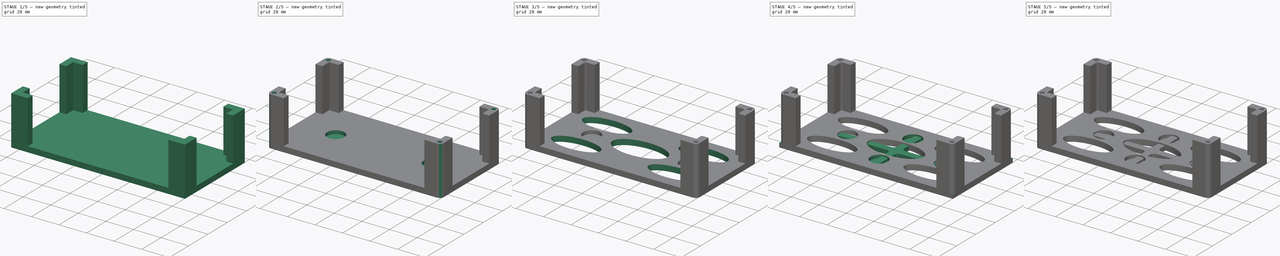
[diagram: build sequence overview — one tinted view per stage of 5, left to right]
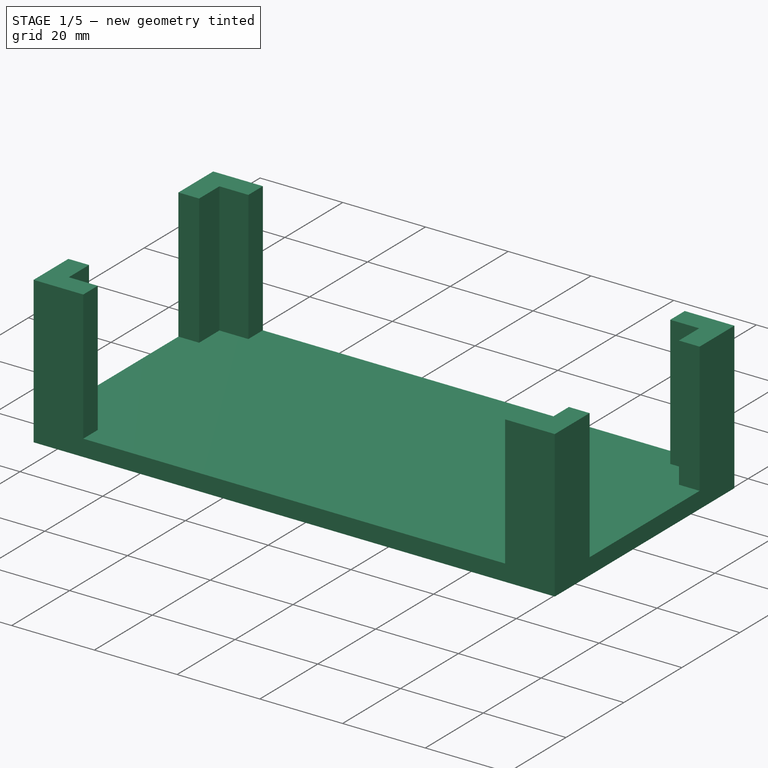
[diagram: stage 1 of 5 — iso view after this stage's code; geometry added in this stage tinted green]
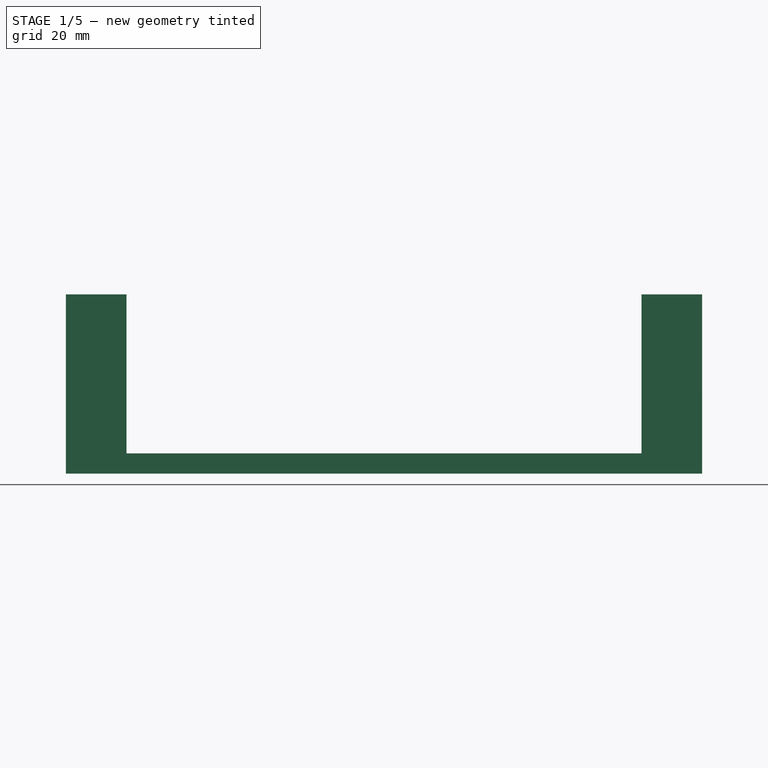
[diagram: stage 1 of 5 — front view after this stage's code; geometry added in this stage tinted green]
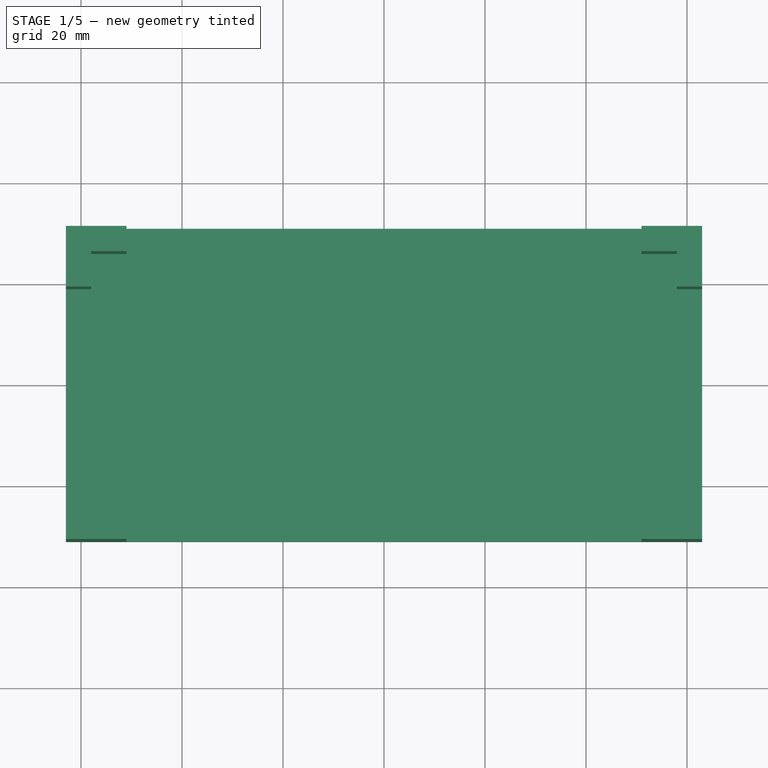
[diagram: stage 1 of 5 — top view after this stage's code; geometry added in this stage tinted green]
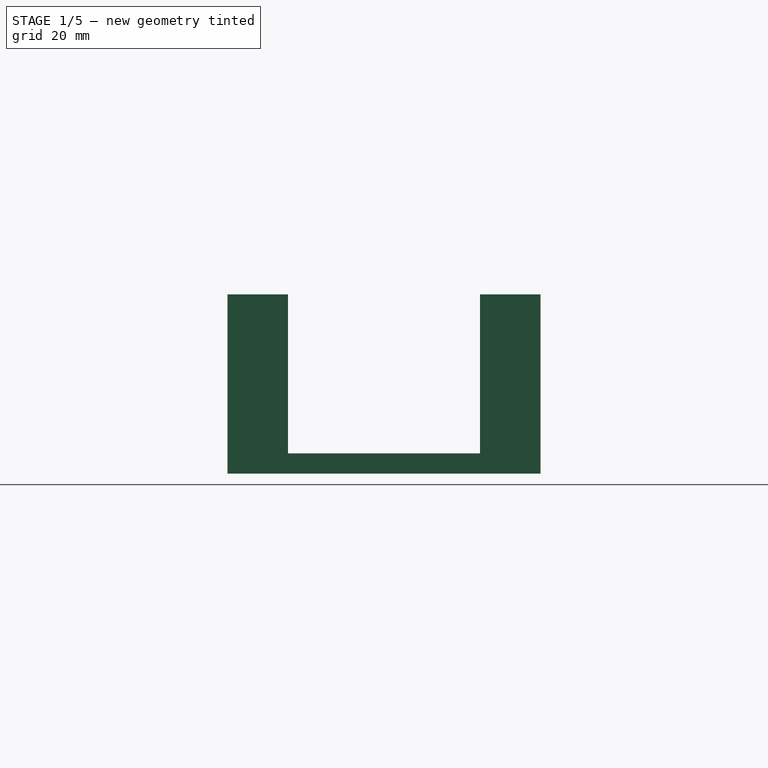
[diagram: stage 1 of 5 — right view after this stage's code; geometry added in this stage tinted green]
FCSTD DOCUMENT  (FreeCAD 0.19R24291 (Git))
Label: 12vAdapterHolderMagnet
License: All rights reserved
LicenseURL: http://en.wikipedia.org/wiki/All_rights_reserved
objects: Sketcher::SketchObject×14, PartDesign::Pocket×9, PartDesign::Mirrored×8, PartDesign::Pad×5, PartDesign::PolarPattern×4, PartDesign::Fillet×4, PartDesign::Body×2
note: 64 computed .brp shape members not serialized (recipe doc carries the construction recipe); baked Part::Feature solids carry a one-line shape summary decoded from their .brp

FEATURE [Sketcher::SketchObject] Sketch
  FullyConstrained = true
  MapMode = 5
  Support = -> [XY_Plane]
  expr: Constraints[11] = Constraints[9] / 2
  expr: Constraints[10] = -Constraints[8] / 2
  sketch-geometry (4):
    g0: LineSegment StartX=-58 StartY=-26 StartZ=0 EndX=58 EndY=-26 EndZ=0
    g1: LineSegment StartX=58 StartY=-26 StartZ=0 EndX=58 EndY=26 EndZ=0
    g2: LineSegment StartX=58 StartY=26 StartZ=0 EndX=-58 EndY=26 EndZ=0
    g3: LineSegment StartX=-58 StartY=26 StartZ=0 EndX=-58 EndY=-26 EndZ=0
  constraints (12):
    c: Coincident(g0,g1)
    c: Coincident(g1,g2)
    c: Coincident(g2,g3)
    c: Coincident(g3,g0)
    c: Horizontal(g0)
    c: Horizontal(g2)
    c: Vertical(g1)
    c: Vertical(g3)
    c: Distance(g2) = 116
    c: Distance(g1) = 52
    c: DistanceX(g-2,g2) = -58
    c: DistanceY(g-1,g1) = 26
FEATURE [PartDesign::Pad] Pad
  Direction = (1,1,1)
  Length = 4
  Length2 = 100
  Profile = -> Sketch
  Type = 0
FEATURE [Sketcher::SketchObject] Sketch001
  ExternalGeometry = -> [Pad]
  FullyConstrained = true
  MapMode = 5
  Placement = pos=(0,0,4) rot=(0,0,1;0rad)
  Support = -> [Pad]
  expr: Constraints[11] = Constraints[8]
  expr: Constraints[10] = Constraints[8]
  expr: Constraints[9] = Constraints[8]
  sketch-geometry (8):
    g0: LineSegment StartX=-63 StartY=-31 StartZ=0 EndX=63 EndY=-31 EndZ=0
    g1: LineSegment StartX=63 StartY=-31 StartZ=0 EndX=63 EndY=31 EndZ=0
    g2: LineSegment StartX=63 StartY=31 StartZ=0 EndX=-63 EndY=31 EndZ=0
    g3: LineSegment StartX=-63 StartY=31 StartZ=0 EndX=-63 EndY=-31 EndZ=0
    g4: LineSegment StartX=-58 StartY=-26 StartZ=0 EndX=58 EndY=-26 EndZ=0
    g5: LineSegment StartX=58 StartY=-26 StartZ=0 EndX=58 EndY=26 EndZ=0
    g6: LineSegment StartX=58 StartY=26 StartZ=0 EndX=-58 EndY=26 EndZ=0
    g7: LineSegment StartX=-58 StartY=26 StartZ=0 EndX=-58 EndY=-26 EndZ=0
  constraints (22):
    c: Coincident(g0,g1)
    c: Coincident(g1,g2)
    c: Coincident(g2,g3)
    c: Coincident(g3,g0)
    c: Horizontal(g0)
    c: Horizontal(g2)
    c: Vertical(g1)
    c: Vertical(g3)
    c: Distance(g-4,g2) = 5
    c: Distance(g-5,g3) = 5
    c: Distance(g-6,g0) = 5
    c: Distance(g-6,g1) = 5
    c: Coincident(g4,g5)
    c: Coincident(g5,g6)
    c: Coincident(g6,g7)
    c: Coincident(g7,g4)
    c: Horizontal(g4)
    c: Horizontal(g6)
    c: Vertical(g5)
    c: Vertical(g7)
    c: Coincident(g4,g-5)
    c: Coincident(g5,g-6)
FEATURE [PartDesign::Pad] Pad001
  BaseFeature = -> Pad
  Direction = (1,1,1)
  Length = 10
  Length2 = 100
  Profile = -> Sketch001
  Reversed = true
  Type = 2
FEATURE [Sketcher::SketchObject] Sketch002
  ExternalGeometry = -> [Pad001]
  FullyConstrained = true
  MapMode = 5
  Placement = pos=(0,0,4) rot=(0,0,1;0rad)
  Support = -> [Pad001]
  sketch-geometry (6):
    g0: LineSegment StartX=-58 StartY=-19 StartZ=0 EndX=-63 EndY=-19 EndZ=0
    g1: LineSegment StartX=-63 StartY=-19 StartZ=0 EndX=-63 EndY=-31 EndZ=0
    g2: LineSegment StartX=-63 StartY=-31 StartZ=0 EndX=-51 EndY=-31 EndZ=0
    g3: LineSegment StartX=-51 StartY=-31 StartZ=0 EndX=-51 EndY=-26 EndZ=0
    g4: LineSegment StartX=-51 StartY=-26 StartZ=0 EndX=-58 EndY=-26 EndZ=0
    g5: LineSegment StartX=-58 StartY=-26 StartZ=0 EndX=-58 EndY=-19 EndZ=0
  constraints (16):
    c: PointOnObject(g0,g-4)
    c: PointOnObject(g0,g-3)
    c: Horizontal(g0)
    c: Coincident(g1,g0)
    c: Coincident(g1,g-6)
    c: Coincident(g2,g1)
    c: PointOnObject(g2,g-6)
    c: Coincident(g3,g2)
    c: PointOnObject(g3,g-5)
    c: Vertical(g3)
    c: Coincident(g4,g3)
    c: Coincident(g4,g-5)
    c: Coincident(g5,g4)
    c: Coincident(g5,g0)
    c: Equal(g5,g4)
    c: Distance(g1) = 12
FEATURE [PartDesign::Pad] Pad002
  BaseFeature = -> Pad001
  Direction = (1,1,1)
  Length = 31.5
  Length2 = 100
  Profile = -> Sketch002
  Type = 0
FEATURE [PartDesign::Mirrored] Mirrored
  BaseFeature = -> Pad002
  MirrorPlane = -> Sketch002 [V_Axis]
  Originals = -> [Pad002]
FEATURE [PartDesign::Mirrored] Mirrored001
  BaseFeature = -> Mirrored
  MirrorPlane = -> XZ_Plane
  Originals = -> [Pad002]
FEATURE [PartDesign::PolarPattern] PolarPattern
  Angle = 360
  Axis = -> Sketch002 [N_Axis]
  BaseFeature = -> Mirrored001
  Occurrences = 2
  Originals = -> [Pad002]
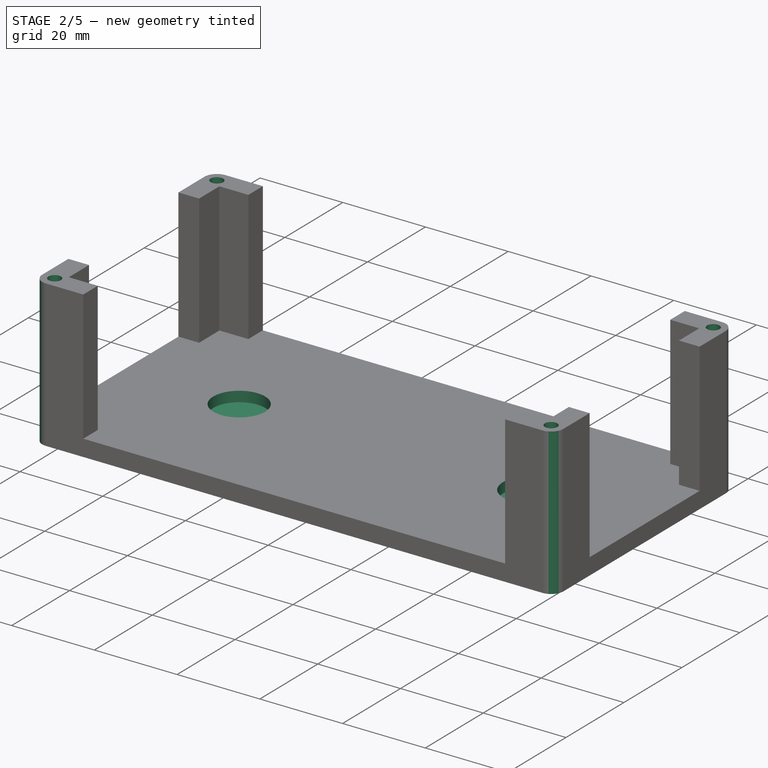
[diagram: stage 2 of 5 — iso view after this stage's code; geometry added in this stage tinted green]
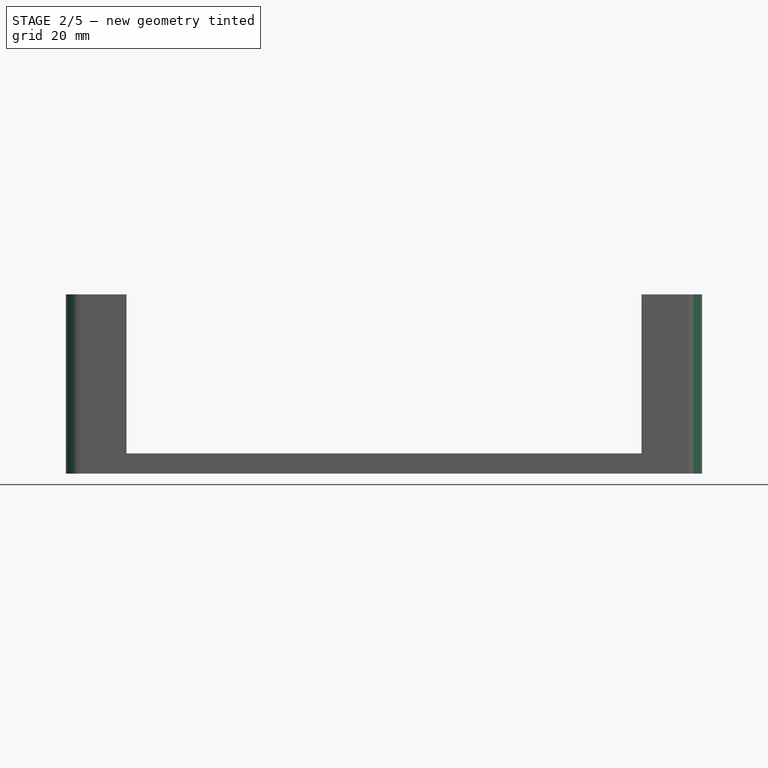
[diagram: stage 2 of 5 — front view after this stage's code; geometry added in this stage tinted green]
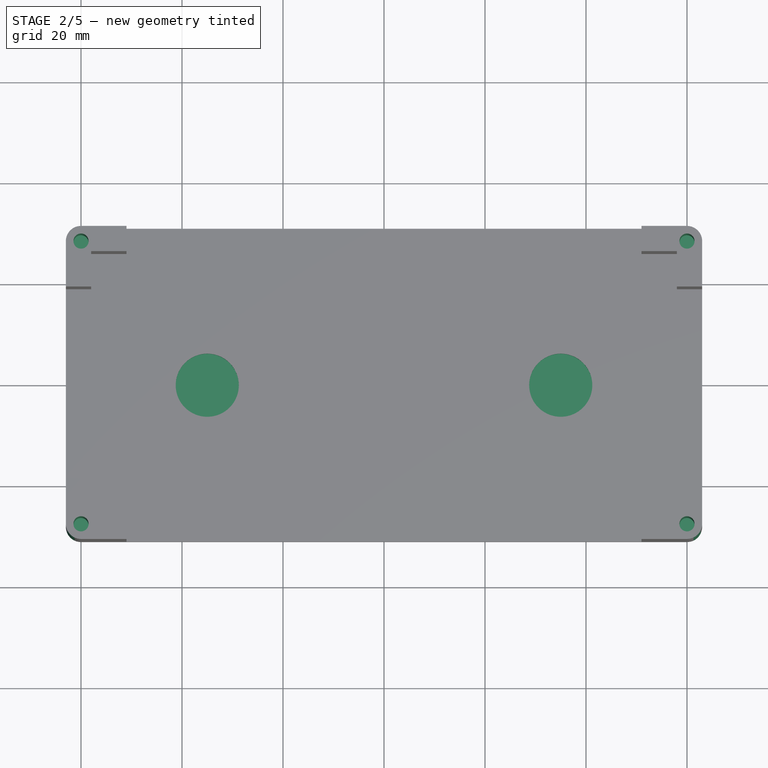
[diagram: stage 2 of 5 — top view after this stage's code; geometry added in this stage tinted green]
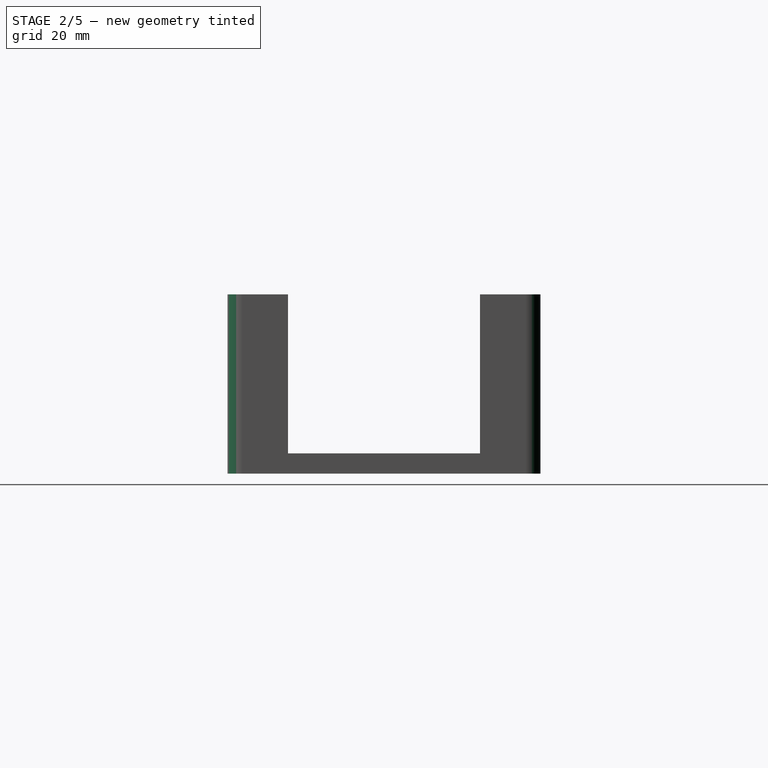
[diagram: stage 2 of 5 — right view after this stage's code; geometry added in this stage tinted green]
FEATURE [Sketcher::SketchObject] Sketch003
  FullyConstrained = true
  MapMode = 5
  Placement = pos=(0,0,4) rot=(0,0,1;0rad)
  Support = -> [PolarPattern]
  expr: Constraints[5] = -Constraints[4]
  expr: Constraints[3] = Constraints[2]
  sketch-geometry (2):
    g0: Circle CenterX=-35 CenterY=0 CenterZ=0 NormalX=0 NormalY=0 NormalZ=1 AngleXU=0 Radius=6.25
    g1: Circle CenterX=35 CenterY=0 CenterZ=0 NormalX=0 NormalY=0 NormalZ=1 AngleXU=0 Radius=6.25
  constraints (6):
    c: PointOnObject(g0,g-1)
    c: PointOnObject(g1,g-1)
    c: Diameter(g0) = 12.5
    c: Diameter(g1) = 12.5
    c: DistanceX(g-2,g0) = -35
    c: DistanceX(g-2,g1) = 35
FEATURE [PartDesign::Pocket] Pocket
  BaseFeature = -> PolarPattern
  Length = 2.5
  Length2 = 100
  Profile = -> Sketch003
  Type = 0
FEATURE [PartDesign::Fillet] Fillet
  Base = -> Pocket [Edge25,Edge13,Edge35,Edge17,Edge31,Edge12,Edge42,Edge21]
  BaseFeature = -> Pocket
  Radius = 3
  SupportTransform = false
FEATURE [Sketcher::SketchObject] Sketch004
  ExternalGeometry = -> [Fillet]
  FullyConstrained = true
  MapMode = 5
  Placement = pos=(0,-1.58e-14,35.5) rot=(0,0,1;0rad)
  Support = -> [Fillet]
  sketch-geometry (3):
    g0: Circle CenterX=-60 CenterY=28 CenterZ=0 NormalX=0 NormalY=0 NormalZ=1 AngleXU=0 Radius=1.5
    g1: LineSegment StartX=-58 StartY=26 StartZ=0 EndX=-60 EndY=28 EndZ=0
    g2: LineSegment StartX=-60 StartY=28 StartZ=0 EndX=-62.1213 EndY=30.1213 EndZ=0
  constraints (7):
    c: Coincident(g1,g-5)
    c: Coincident(g1,g-3)
    c: Coincident(g2,g1)
    c: Parallel(g2,g1)
    c: PointOnObject(g2,g-3)
    c: Coincident(g0,g1)
    c: Diameter(g0) = 3
FEATURE [PartDesign::Pocket] Pocket001
  BaseFeature = -> Fillet
  Length = 20
  Length2 = 100
  Offset = 20
  Profile = -> Sketch004
  Type = 0
FEATURE [PartDesign::PolarPattern] PolarPattern001
  Angle = 360
  Axis = -> Sketch004 [N_Axis]
  BaseFeature = -> Pocket001
  Occurrences = 2
  Originals = -> [Pocket001]
FEATURE [PartDesign::Mirrored] Mirrored002
  BaseFeature = -> PolarPattern001
  MirrorPlane = -> XZ_Plane
  Originals = -> [Pocket001]
FEATURE [PartDesign::Mirrored] Mirrored003
  BaseFeature = -> Mirrored002
  MirrorPlane = -> Sketch004 [V_Axis]
  Originals = -> [Pocket001]
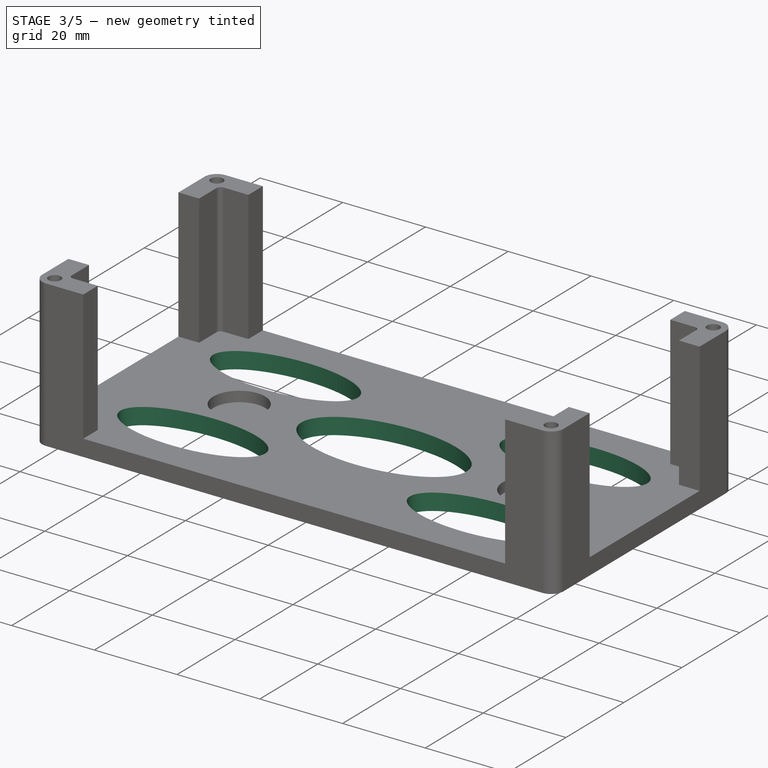
[diagram: stage 3 of 5 — iso view after this stage's code; geometry added in this stage tinted green]
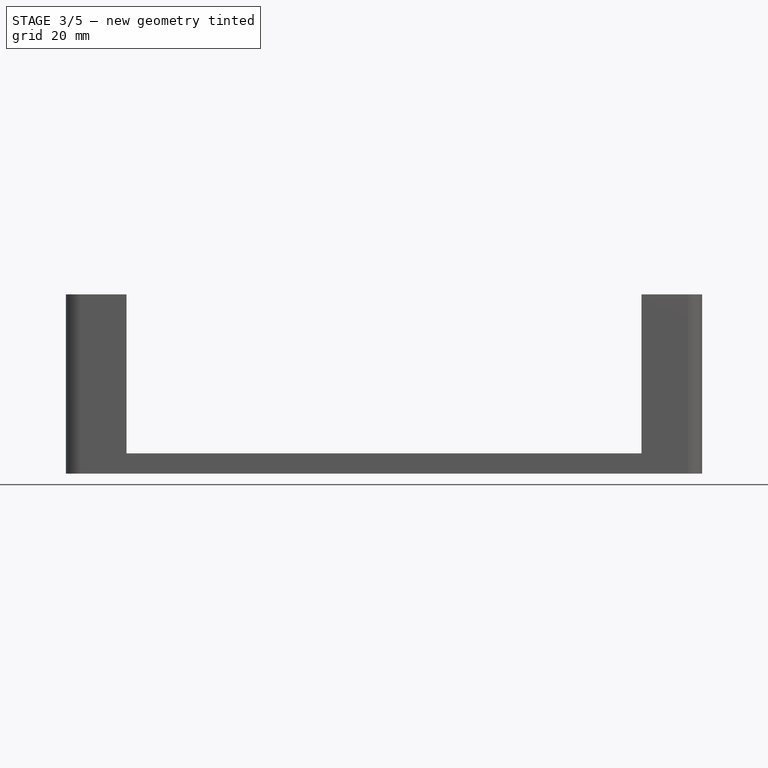
[diagram: stage 3 of 5 — front view after this stage's code; geometry added in this stage tinted green]
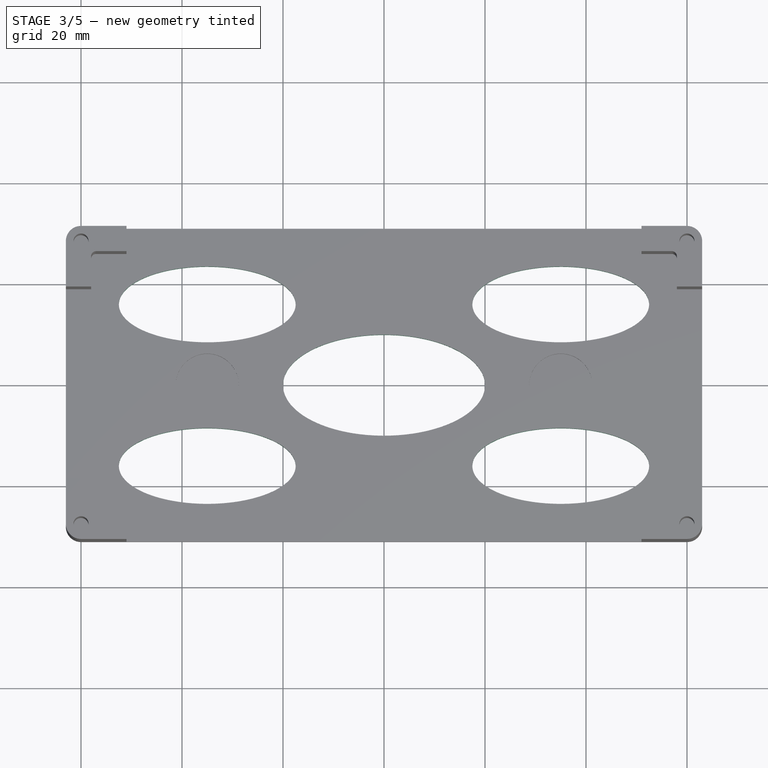
[diagram: stage 3 of 5 — top view after this stage's code; geometry added in this stage tinted green]
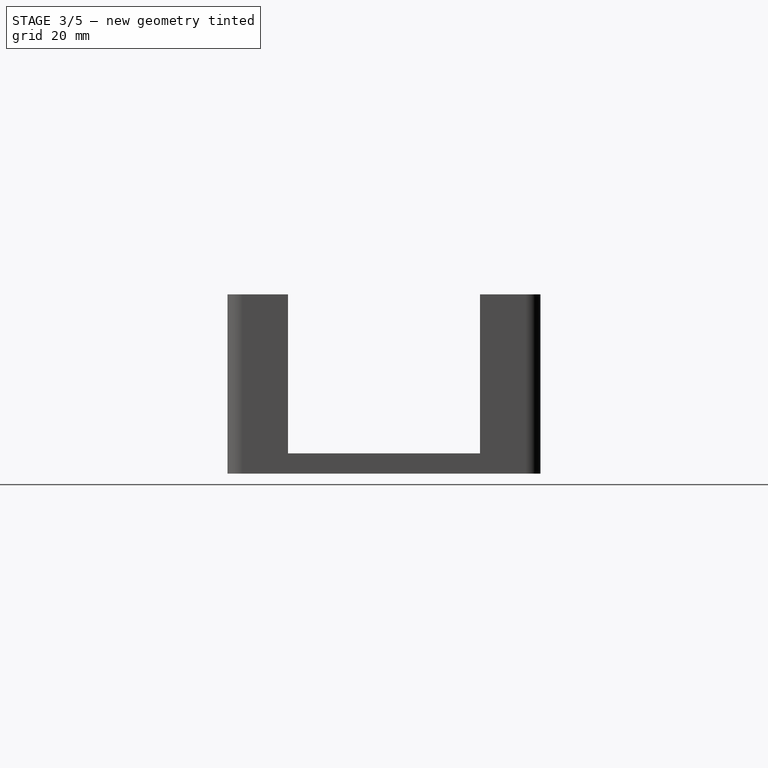
[diagram: stage 3 of 5 — right view after this stage's code; geometry added in this stage tinted green]
FEATURE [Sketcher::SketchObject] Sketch005
  FullyConstrained = true
  MapMode = 5
  Placement = pos=(0,0,4) rot=(0,0,1;0rad)
  Support = -> [Mirrored003]
  sketch-geometry (5):
    g0: Ellipse CenterX=0 CenterY=0 CenterZ=0 NormalX=0 NormalY=0 NormalZ=1 MajorRadius=20 MinorRadius=10 AngleXU=0
    g1: LineSegment StartX=20 StartY=0 StartZ=0 EndX=-20 EndY=0 EndZ=0
    g2: LineSegment StartX=0 StartY=10 StartZ=0 EndX=0 EndY=-10 EndZ=0
    g3: GeomPoint X=17.3205 Y=0 Z=0
    g4: GeomPoint X=-17.3205 Y=0 Z=0
  constraints (5):
    c: InternalAlignment(g1-g4 -> g0) x4
    c: Coincident(g0,g-1)
    c: Distance(g2) = 20
    c: Distance(g1) = 40
    c: Horizontal(g1)
FEATURE [PartDesign::Pocket] Pocket002
  BaseFeature = -> Mirrored003
  Length = 5
  Length2 = 100
  Profile = -> Sketch005
  Type = 1
FEATURE [Sketcher::SketchObject] Sketch006
  ExternalGeometry = -> [Pocket002]
  FullyConstrained = true
  MapMode = 5
  Support = -> [XY_Plane]
  sketch-geometry (5):
    g0: Ellipse CenterX=-35 CenterY=16 CenterZ=0 NormalX=0 NormalY=0 NormalZ=1 MajorRadius=17.5 MinorRadius=7.5 AngleXU=-3.14159
    g1: LineSegment StartX=-52.5 StartY=16 StartZ=0 EndX=-17.5 EndY=16 EndZ=0
    g2: LineSegment StartX=-35 StartY=8.5 StartZ=0 EndX=-35 EndY=23.5 EndZ=0
    g3: GeomPoint X=-50.8114 Y=16 Z=0
    g4: GeomPoint X=-19.1886 Y=16 Z=0
  constraints (6):
    c: InternalAlignment(g1-g4 -> g0) x4
    c: Horizontal(g1)
    c: Vertical(g0,g-7)
    c: Distance(g0,g-3) = 10
    c: Distance(g2) = 15
    c: Distance(g1) = 35
FEATURE [PartDesign::Pocket] Pocket003
  BaseFeature = -> Pocket002
  Length = 5
  Length2 = 100
  Profile = -> Sketch006
  Reversed = true
  Type = 1
FEATURE [PartDesign::Mirrored] Mirrored004
  BaseFeature = -> Pocket003
  MirrorPlane = -> Sketch006 [V_Axis]
  Originals = -> [Pocket003]
FEATURE [PartDesign::Mirrored] Mirrored005
  BaseFeature = -> Mirrored004
  MirrorPlane = -> XZ_Plane
  Originals = -> [Pocket003]
FEATURE [PartDesign::PolarPattern] PolarPattern002
  Angle = 360
  Axis = -> Sketch006 [N_Axis]
  BaseFeature = -> Mirrored005
  Occurrences = 2
  Originals = -> [Pocket003]
FEATURE [PartDesign::Fillet] Fillet001
  Base = -> PolarPattern002 [Edge134,Edge130,Edge135,Edge133]
  BaseFeature = -> PolarPattern002
  Radius = 1
  SupportTransform = false
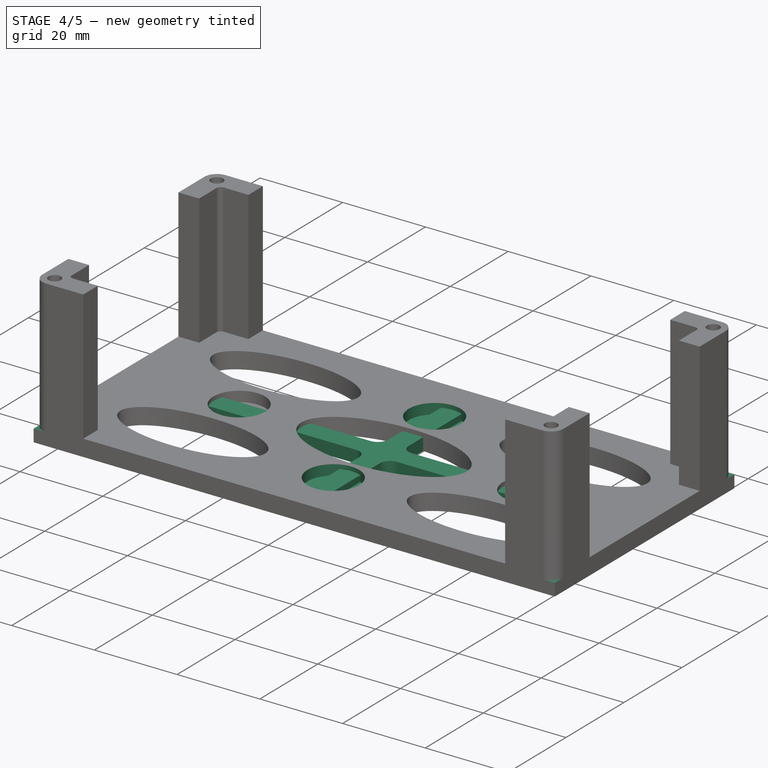
[diagram: stage 4 of 5 — iso view after this stage's code; geometry added in this stage tinted green]
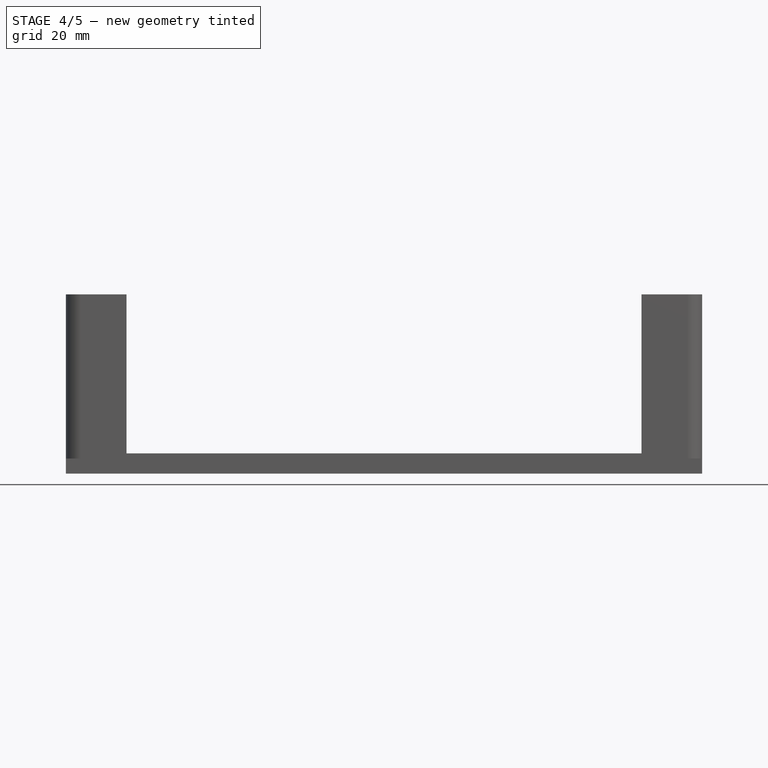
[diagram: stage 4 of 5 — front view after this stage's code; geometry added in this stage tinted green]
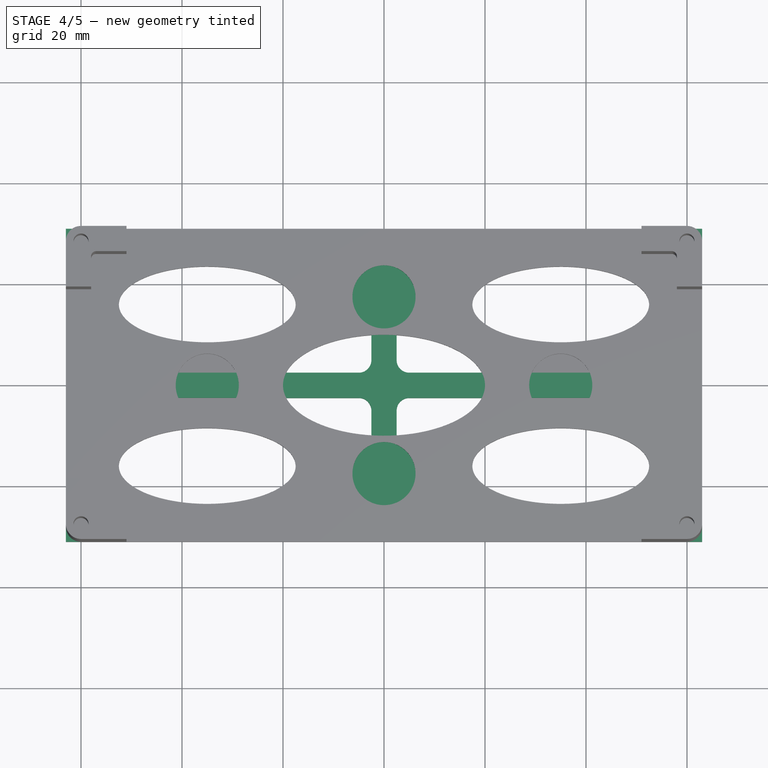
[diagram: stage 4 of 5 — top view after this stage's code; geometry added in this stage tinted green]
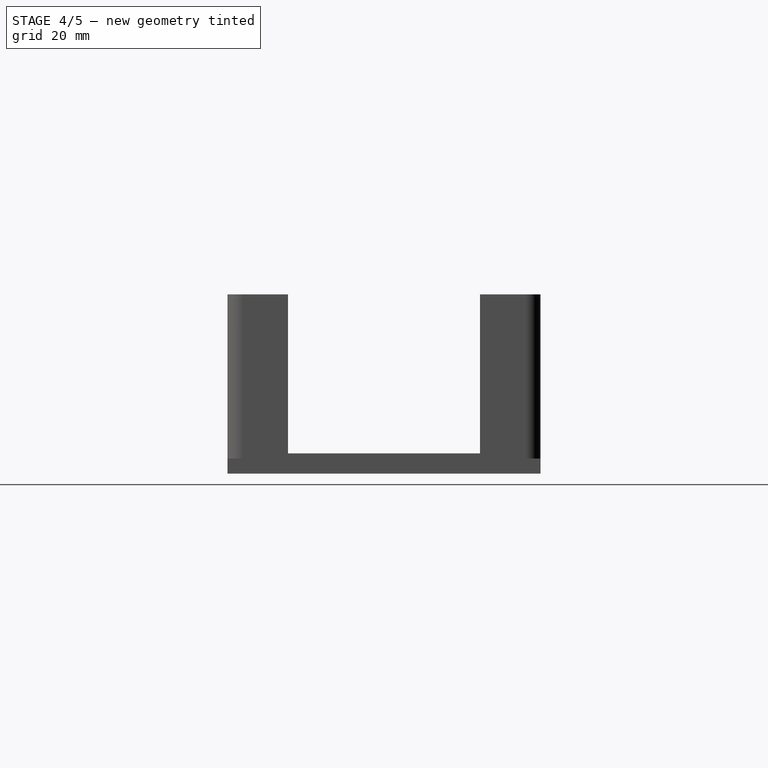
[diagram: stage 4 of 5 — right view after this stage's code; geometry added in this stage tinted green]
FEATURE [Sketcher::SketchObject] Sketch007
  FullyConstrained = true
  MapMode = 5
  Support = -> [XY_Plane001]
  expr: Constraints[11] = Constraints[9] / 2
  expr: Constraints[10] = Constraints[8] / 2
  sketch-geometry (4):
    g0: LineSegment StartX=-63 StartY=-31 StartZ=0 EndX=63 EndY=-31 EndZ=0
    g1: LineSegment StartX=63 StartY=-31 StartZ=0 EndX=63 EndY=31 EndZ=0
    g2: LineSegment StartX=63 StartY=31 StartZ=0 EndX=-63 EndY=31 EndZ=0
    g3: LineSegment StartX=-63 StartY=31 StartZ=0 EndX=-63 EndY=-31 EndZ=0
  constraints (12):
    c: Coincident(g0,g1)
    c: Coincident(g1,g2)
    c: Coincident(g2,g3)
    c: Coincident(g3,g0)
    c: Horizontal(g0)
    c: Horizontal(g2)
    c: Vertical(g1)
    c: Vertical(g3)
    c: Distance(g2) = 126
    c: Distance(g1) = 62
    c: Distance(g2,g-2) = 63
    c: Distance(g1,g-1) = 31
FEATURE [PartDesign::Pad] Pad003
  Direction = (1,1,1)
  Length = 3
  Length2 = 100
  Profile = -> Sketch007
  Type = 0
FEATURE [Sketcher::SketchObject] Sketch008
  ExternalGeometry = -> [Pad003]
  FullyConstrained = true
  MapMode = 5
  Placement = pos=(0,0,3) rot=(0,0,1;0rad)
  Support = -> [Pad003]
  expr: Constraints[11] = Constraints[8]
  expr: Constraints[10] = Constraints[8]
  expr: Constraints[9] = Constraints[8]
  sketch-geometry (4):
    g0: LineSegment StartX=-58 StartY=-26 StartZ=0 EndX=58 EndY=-26 EndZ=0
    g1: LineSegment StartX=58 StartY=-26 StartZ=0 EndX=58 EndY=26 EndZ=0
    g2: LineSegment StartX=58 StartY=26 StartZ=0 EndX=-58 EndY=26 EndZ=0
    g3: LineSegment StartX=-58 StartY=26 StartZ=0 EndX=-58 EndY=-26 EndZ=0
  constraints (12):
    c: Coincident(g0,g1)
    c: Coincident(g1,g2)
    c: Coincident(g2,g3)
    c: Coincident(g3,g0)
    c: Horizontal(g0)
    c: Horizontal(g2)
    c: Vertical(g1)
    c: Vertical(g3)
    c: Distance(g2,g-4) = 5
    c: Distance(g2,g-3) = 5
    c: Distance(g0,g-5) = 5
    c: Distance(g1,g-6) = 5
FEATURE [PartDesign::Pocket] Pocket004
  BaseFeature = -> Pad003
  Length = 5
  Length2 = 100
  Profile = -> Sketch008
  Type = 1
FEATURE [Sketcher::SketchObject] Sketch009
  ExternalGeometry = -> [Pocket004]
  FullyConstrained = true
  MapMode = 5
  Placement = pos=(0,0,3) rot=(0,0,1;0rad)
  Support = -> [Pocket004]
  expr: Constraints[59] = Constraints[5]
  expr: Constraints[57] = -Constraints[11]
  expr: Constraints[56] = Constraints[5]
  expr: Constraints[44] = Constraints[5]
  expr: Constraints[42] = -Constraints[11]
  expr: Constraints[27] = Constraints[11]
  expr: Constraints[32] = Constraints[11]
  expr: Constraints[26] = Constraints[5]
  expr: Constraints[31] = Constraints[5]
  expr: Constraints[21] = Constraints[5]
  expr: Constraints[37] = Constraints[5]
  expr: Constraints[35] = Constraints[5]
  expr: Constraints[18] = -Constraints[11]
  expr: Constraints[49] = Constraints[11]
  expr: Constraints[45] = Constraints[11]
  expr: Constraints[15] = Constraints[5]
  expr: Constraints[11] = Constraints[10] / 2
  expr: Constraints[6] = Constraints[5]
  sketch-geometry (24):
    g0: ArcOfCircle CenterX=-5 CenterY=-5 CenterZ=0 NormalX=0 NormalY=0 NormalZ=1 AngleXU=0 Radius=2.5 StartAngle=2e-16 EndAngle=1.5708
    g1: ArcOfCircle CenterX=-5 CenterY=5 CenterZ=0 NormalX=0 NormalY=0 NormalZ=1 AngleXU=0 Radius=2.5 StartAngle=4.71239 EndAngle=6.28319
    g2: ArcOfCircle CenterX=5 CenterY=5 CenterZ=0 NormalX=0 NormalY=0 NormalZ=1 AngleXU=0 Radius=2.5 StartAngle=3.14159 EndAngle=4.71239
    g3: ArcOfCircle CenterX=-55.5 CenterY=5 CenterZ=0 NormalX=0 NormalY=0 NormalZ=1 AngleXU=0 Radius=2.5 StartAngle=3.14159 EndAngle=4.71239
    g4: ArcOfCircle CenterX=-55.5 CenterY=-5 CenterZ=0 NormalX=0 NormalY=0 NormalZ=1 AngleXU=0 Radius=2.5 StartAngle=1.5708 EndAngle=3.14159
    g5: ArcOfCircle CenterX=-5 CenterY=-23.5 CenterZ=0 NormalX=0 NormalY=0 NormalZ=1 AngleXU=0 Radius=2.5 StartAngle=4.71239 EndAngle=6.28319
    g6: ArcOfCircle CenterX=5 CenterY=-23.5 CenterZ=0 NormalX=0 NormalY=0 NormalZ=1 AngleXU=0 Radius=2.5 StartAngle=3.14159 EndAngle=4.71239
    g7: ArcOfCircle CenterX=55.5 CenterY=-5 CenterZ=0 NormalX=0 NormalY=0 NormalZ=1 AngleXU=0 Radius=2.5 StartAngle=4.59344e-08 EndAngle=1.5708
    g8: ArcOfCircle CenterX=55.5 CenterY=5 CenterZ=0 NormalX=0 NormalY=0 NormalZ=1 AngleXU=0 Radius=2.5 StartAngle=4.71239 EndAngle=6.28319
    g9: ArcOfCircle CenterX=5 CenterY=23.5 CenterZ=0 NormalX=0 NormalY=0 NormalZ=1 AngleXU=0 Radius=2.5 StartAngle=1.5708 EndAngle=3.14159
    g10: ArcOfCircle CenterX=-5 CenterY=23.5 CenterZ=0 NormalX=0 NormalY=0 NormalZ=1 AngleXU=0 Radius=2.5 StartAngle=8e-16 EndAngle=1.5708
    g11: LineSegment StartX=-55.5 StartY=2.5 StartZ=0 EndX=-5 EndY=2.5 EndZ=0
    g12: LineSegment StartX=-55.5 StartY=-2.5 StartZ=0 EndX=-5 EndY=-2.5 EndZ=0
    g13: LineSegment StartX=-2.5 StartY=-5 StartZ=0 EndX=-2.5 EndY=-23.5 EndZ=0
    g14: LineSegment StartX=5 StartY=2.5 StartZ=0 EndX=55.5 EndY=2.5 EndZ=0
    g15: LineSegment StartX=2.5 StartY=23.5 StartZ=0 EndX=2.5 EndY=5 EndZ=0
    g16: LineSegment StartX=-2.5 StartY=23.5 StartZ=0 EndX=-2.5 EndY=5 EndZ=0
    g17: LineSegment StartX=2.5 StartY=-23.5 StartZ=0 EndX=2.5 EndY=-5 EndZ=0
    g18: ArcOfCircle CenterX=5 CenterY=-5 CenterZ=0 NormalX=0 NormalY=0 NormalZ=1 AngleXU=0 Radius=2.5 StartAngle=1.5708 EndAngle=3.14159
    g19: LineSegment StartX=5 StartY=-2.5 StartZ=0 EndX=55.5 EndY=-2.5 EndZ=0
    g20: LineSegment StartX=-58 StartY=5 StartZ=0 EndX=-58 EndY=-5 EndZ=0
    g21: LineSegment StartX=-5 StartY=26 StartZ=0 EndX=5 EndY=26 EndZ=0
    g22: LineSegment StartX=58 StartY=5 StartZ=0 EndX=58 EndY=-5 EndZ=0
    g23: LineSegment StartX=-5 StartY=-26 StartZ=0 EndX=5.00001 EndY=-26 EndZ=0
  constraints (68):
    c: Tangent(g3,g-4)
    c: Tangent(g4,g-4)
    c: PointOnObject(g3,g-4)
    c: Coincident(g4,g12)
    c: PointOnObject(g4,g-4)
    c: Radius(g3) = 2.5
    c: Radius(g4) = 2.5
    c: Vertical(g4,g3)
    c: Horizontal(g11)
    c: Horizontal(g12)
    c: Distance(g3,g12) = 5
    c: DistanceY(g-1,g3) = 2.5
    c: Tangent(g3,g11) = -1.5708
    c: Tangent(g1,g11) = -1.5708
    c: Tangent(g12,g0) = 1.5708
    c: Radius(g1) = 2.5
    c: Tangent(g1,g16) = 1.5708
    c: Vertical(g16)
    c: DistanceX(g-2,g1) = -2.5
    c: Tangent(g10,g16) = 1.5708
    c: Tangent(g10,g-3) = -1.5708
    c: Radius(g10) = 2.5
    c: Vertical(g15)
    c: Tangent(g15,g9) = -1.5708
    c: PointOnObject(g9,g-3)
    c: Tangent(g9,g-3)
    c: Radius(g9) = 2.5
    c: Distance(g9,g-2) = 2.5
    c: Tangent(g15,g2) = -1.5708
    c: Horizontal(g14)
    c: Tangent(g2,g14) = -1.5708
    c: Radius(g2) = 2.5
    c: DistanceY(g-1,g2) = 2.5
    c: PointOnObject(g8,g-6)
    c: Tangent(g8,g-6)
    c: Radius(g8) = 2.5
    c: Tangent(g14,g8) = -1.5708
    c: Radius(g7) = 2.5
    c: Horizontal(g19)
    c: Tangent(g7,g19) = 1.5708
    c: Tangent(g7,g-6)
    c: PointOnObject(g7,g-6)
    c: DistanceY(g-1,g7) = -2.5
    c: Tangent(g19,g18) = 1.5708
    c: Radius(g18) = 2.5
    c: DistanceX(g-2,g18) = 2.5
    c: Vertical(g17)
    c: Tangent(g18,g17) = 1.5708
    c: Tangent(g17,g6) = 1.5708
    c: Distance(g6,g-5) = 2.5
    c: Tangent(g6,g-5)
    c: PointOnObject(g6,g-5)
    c: Vertical(g13)
    c: Tangent(g13,g5) = 1.5708
    c: Tangent(g5,g-5)
    c: PointOnObject(g5,g-5)
    c: Radius(g5) = 2.5
    c: DistanceX(g-2,g5) = -2.5
    c: Tangent(g0,g13) = 1.5708
    c: Radius(g0) = 2.5
    c: Coincident(g20,g3)
    c: Coincident(g20,g4)
    c: Coincident(g21,g10)
    c: Coincident(g21,g9)
    c: Coincident(g22,g8)
    c: Coincident(g22,g7)
    c: Coincident(g23,g5)
    c: Coincident(g23,g6)
FEATURE [PartDesign::Pad] Pad004
  BaseFeature = -> Pocket004
  Direction = (1,1,1)
  Length = 10
  Length2 = 100
  Profile = -> Sketch009
  Reversed = true
  Type = 3
  UpToFace = -> Pocket004 [Face4]
FEATURE [PartDesign::Body] Body001  label="Lid"
  Group = -> [Sketch007,Pad003,Sketch008,Pocket004,Sketch009,Pad004,Fillet002,Fillet003,Sketch010,Pocket005,Mirrored006,Mirrored007,PolarPattern003]
  Origin = -> Origin001
  Tip = -> PolarPattern003
FEATURE [Sketcher::SketchObject] Sketch011
  ExternalGeometry = -> [Pocket]
  FullyConstrained = true
  MapMode = 5
  Placement = pos=(0,0,1.5) rot=(0,0,1;0rad)
  Support = -> [Pocket]
  expr: Constraints[3] = Constraints[2]
  sketch-geometry (2):
    g0: Circle CenterX=-35 CenterY=0 CenterZ=0 NormalX=0 NormalY=0 NormalZ=1 AngleXU=0 Radius=1
    g1: Circle CenterX=35 CenterY=0 CenterZ=0 NormalX=0 NormalY=0 NormalZ=1 AngleXU=0 Radius=1
  constraints (4):
    c: Coincident(g0,g-3)
    c: Coincident(g1,g-4)
    c: Diameter(g0) = 2
    c: Diameter(g1) = 2
FEATURE [PartDesign::Pocket] Pocket006
  BaseFeature = -> Fillet001
  Length = 5
  Length2 = 100
  Profile = -> Sketch011
  Type = 1
FEATURE [Sketcher::SketchObject] Sketch012
  FullyConstrained = true
  MapMode = 5
  Placement = pos=(0,0,4) rot=(0,0,1;0rad)
  Support = -> [Pocket006]
  expr: Constraints[3] = Constraints[2]
  sketch-geometry (4):
    g0: Circle CenterX=0 CenterY=17.5 CenterZ=0 NormalX=0 NormalY=0 NormalZ=1 AngleXU=0 Radius=6.25
    g1: Circle CenterX=0 CenterY=-17.5 CenterZ=0 NormalX=0 NormalY=0 NormalZ=1 AngleXU=0 Radius=6.25
    g2: LineSegment StartX=0 StartY=17.5 StartZ=0 EndX=0 EndY=0 EndZ=0
    g3: LineSegment StartX=0 StartY=0 StartZ=0 EndX=0 EndY=-17.5 EndZ=0
  constraints (10):
    c: PointOnObject(g0,g-2)
    c: PointOnObject(g1,g-2)
    c: Diameter(g0) = 12.5
    c: Diameter(g1) = 12.5
    c: Coincident(g2,g0)
    c: Coincident(g2,g-1)
    c: Coincident(g3,g-1)
    c: Coincident(g3,g1)
    c: Equal(g2,g3)
    c: DistanceY(g1,g0) = 35
FEATURE [PartDesign::Pocket] Pocket007
  BaseFeature = -> Pocket006
  Length = 2.5
  Length2 = 100
  Profile = -> Sketch012
  Type = 0
FEATURE [Sketcher::SketchObject] Sketch013
  ExternalGeometry = -> [Pocket007]
  FullyConstrained = true
  MapMode = 5
  Placement = pos=(0,0,1.5) rot=(0,0,1;0rad)
  Support = -> [Pocket007]
  expr: Constraints[3] = Constraints[2]
  sketch-geometry (2):
    g0: Circle CenterX=0 CenterY=17.5 CenterZ=0 NormalX=0 NormalY=0 NormalZ=1 AngleXU=0 Radius=1
    g1: Circle CenterX=0 CenterY=-17.5 CenterZ=0 NormalX=0 NormalY=0 NormalZ=1 AngleXU=0 Radius=1
  constraints (4):
    c: Coincident(g0,g-3)
    c: Coincident(g1,g-4)
    c: Diameter(g0) = 2
    c: Diameter(g1) = 2
FEATURE [PartDesign::Pocket] Pocket008
  BaseFeature = -> Pocket007
  Length = 5
  Length2 = 100
  Profile = -> Sketch013
  Type = 1
FEATURE [PartDesign::Body] Body
  Group = -> [Sketch,Pad,Sketch001,Pad001,Sketch002,Pad002,Mirrored,Mirrored001,PolarPattern,Sketch003,Pocket,Fillet,Sketch004,Pocket001,PolarPattern001,Mirrored002,Mirrored003,Sketch005,Pocket002,Sketch006,Pocket003,Mirrored004,Mirrored005,PolarPattern002,Fillet001,Sketch011,Pocket006,Sketch012,Pocket007,Sketch013,Pocket008]
  Origin = -> Origin
  Tip = -> Pocket008
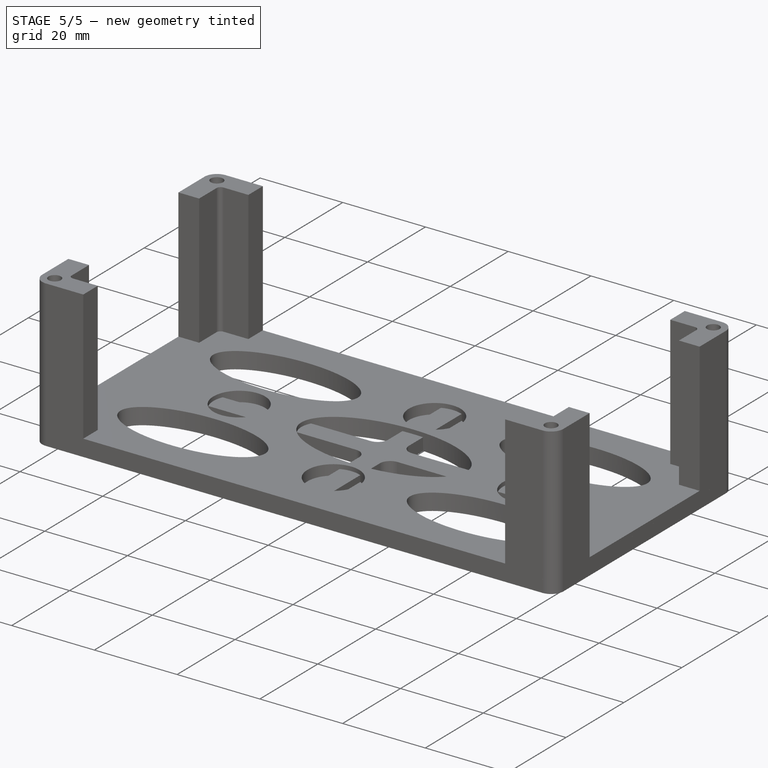
[diagram: stage 5 of 5 — iso view after this stage's code; geometry added in this stage tinted green]
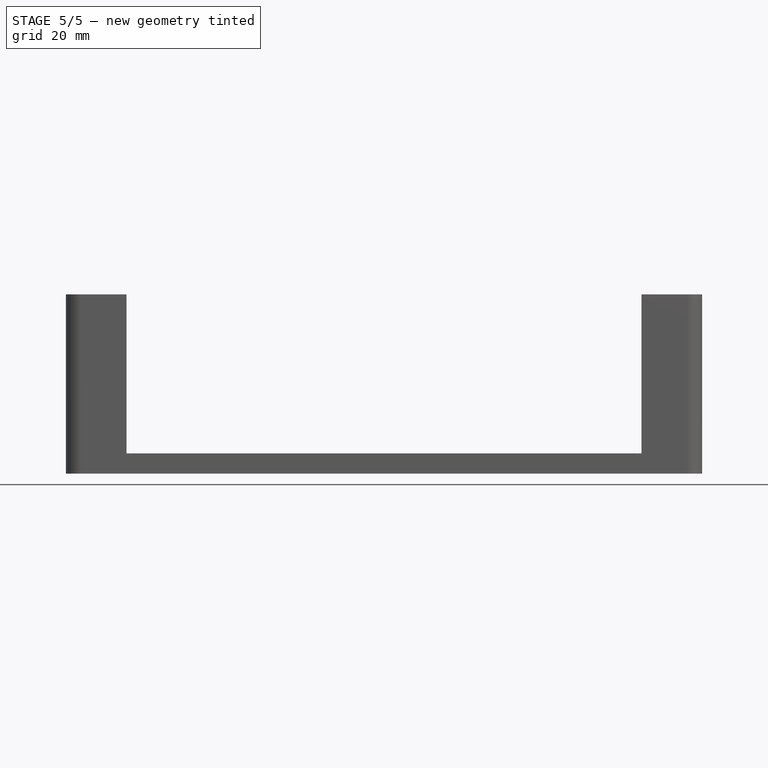
[diagram: stage 5 of 5 — front view after this stage's code; geometry added in this stage tinted green]
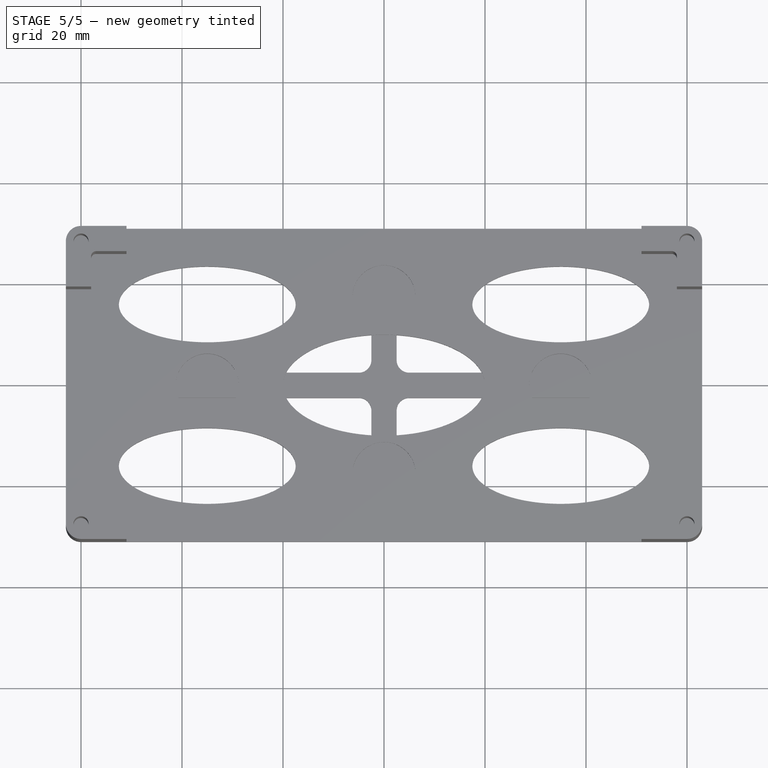
[diagram: stage 5 of 5 — top view after this stage's code; geometry added in this stage tinted green]
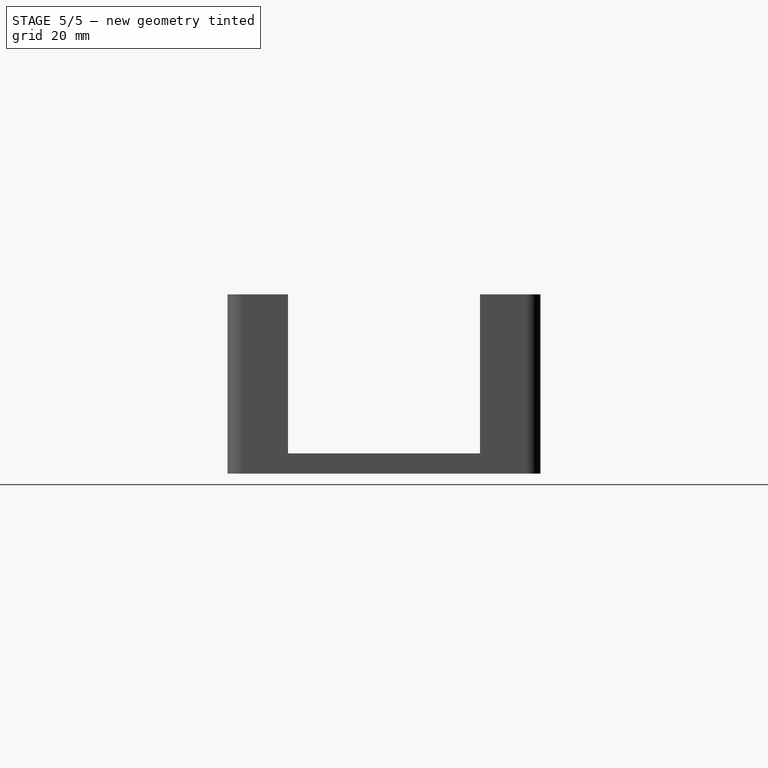
[diagram: stage 5 of 5 — right view after this stage's code; geometry added in this stage tinted green]
FEATURE [PartDesign::Fillet] Fillet002
  Base = -> Pad004 [Edge5,Edge1,Edge2,Edge8]
  BaseFeature = -> Pad004
  Radius = 3
  SupportTransform = false
FEATURE [PartDesign::Fillet] Fillet003
  Base = -> Fillet002 [Edge50,Edge77,Edge74,Edge71]
  BaseFeature = -> Fillet002
  Radius = 2.5
  SupportTransform = false
FEATURE [Sketcher::SketchObject] Sketch010
  ExternalGeometry = -> [Fillet003]
  FullyConstrained = true
  MapMode = 5
  Placement = pos=(0,0,3) rot=(0,0,1;0rad)
  Support = -> [Fillet003]
  sketch-geometry (1):
    g0: Circle CenterX=-60 CenterY=28 CenterZ=0 NormalX=0 NormalY=0 NormalZ=1 AngleXU=0 Radius=1.6
  constraints (2):
    c: Coincident(g0,g-3)
    c: Diameter(g0) = 3.2
FEATURE [PartDesign::Pocket] Pocket005
  BaseFeature = -> Fillet003
  Length = 5
  Length2 = 100
  Profile = -> Sketch010
  Type = 1
FEATURE [PartDesign::Mirrored] Mirrored006
  BaseFeature = -> Pocket005
  MirrorPlane = -> Sketch010 [V_Axis]
  Originals = -> [Pocket005]
FEATURE [PartDesign::Mirrored] Mirrored007
  BaseFeature = -> Mirrored006
  MirrorPlane = -> XZ_Plane001
  Originals = -> [Pocket005]
FEATURE [PartDesign::PolarPattern] PolarPattern003
  Angle = 360
  Axis = -> Sketch010 [N_Axis]
  BaseFeature = -> Mirrored007
  Occurrences = 2
  Originals = -> [Pocket005]
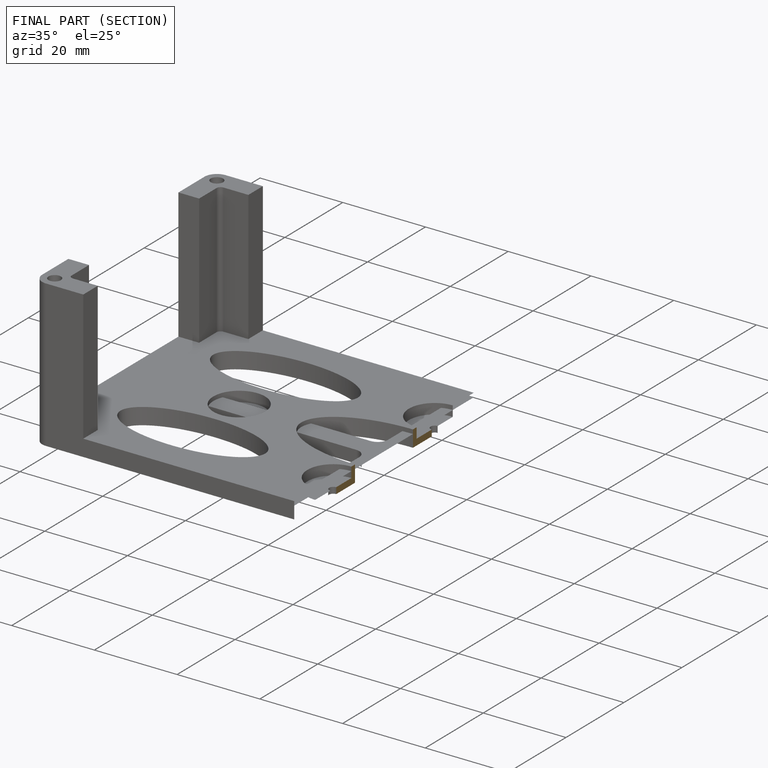
[diagram: finished part — half-section view (interior)]
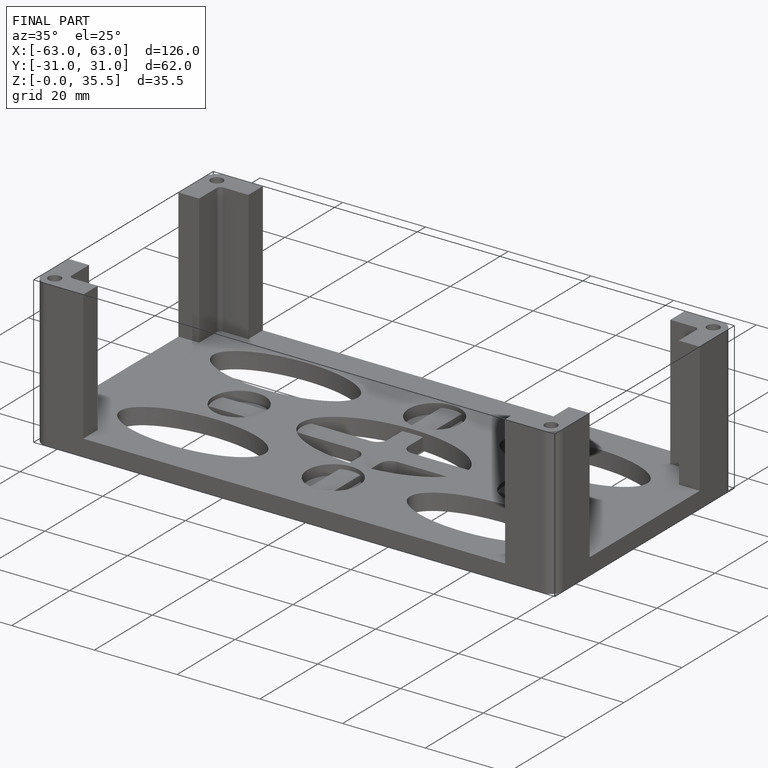
[diagram: finished part — iso view with bounding-box wireframe]
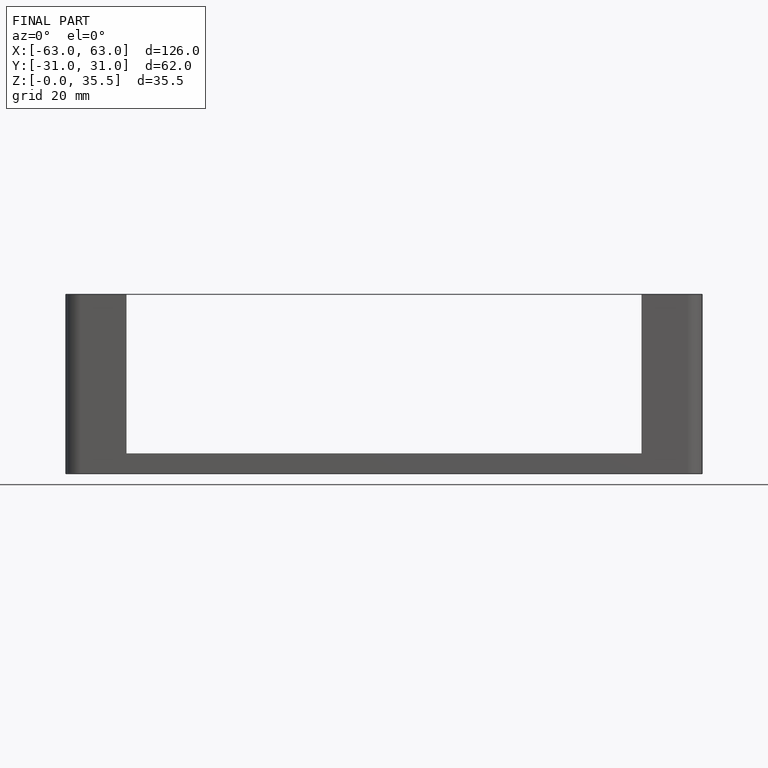
[diagram: finished part — front view with bounding-box wireframe]
